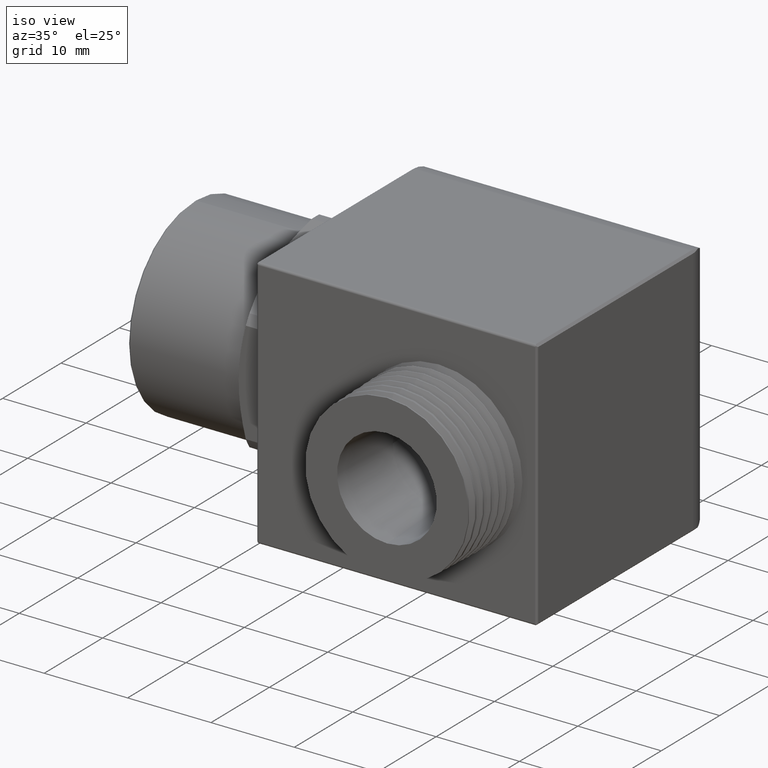
[diagram: clean part render]
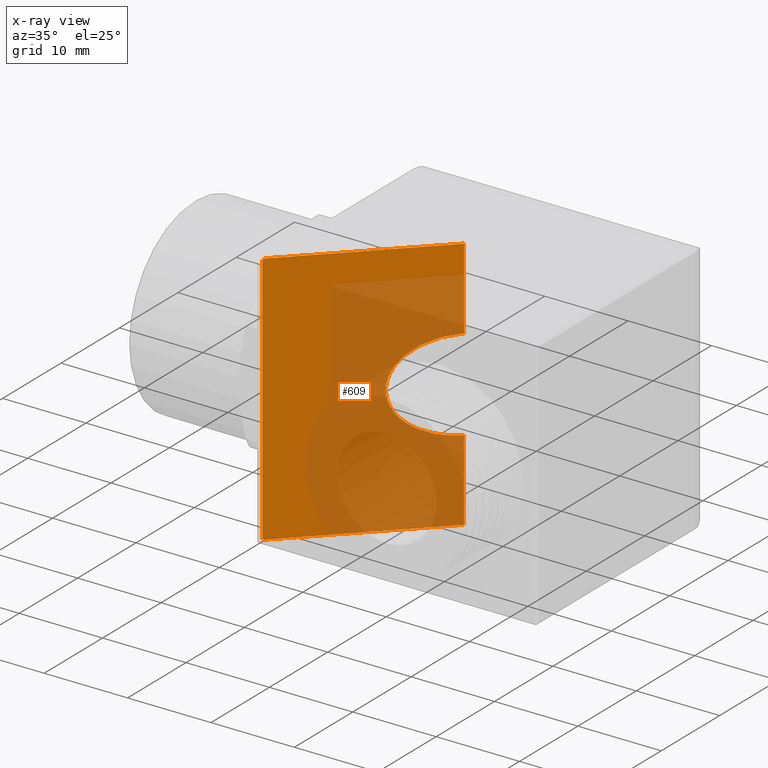
[diagram: x-ray — body ghosted, one internal face saturated and labeled with its STEP entity id]
A machine part, iso view, then the same camera in x-ray: the body is ghosted and one INTERNAL B-rep face — a face not visible from any outside direction — is saturated and labeled: STEP entity #609.
In plain terms, the highlighted planar face has unit normal (-0.7071, 0.7071, 0).
Its self-contained STEP definition (entity closure, byte-faithful):
#412 = VERTEX_POINT ( 'NONE', #1852 ) ;
#414 = EDGE_CURVE ( 'NONE', #415, #412, #1849, .T. ) ;
#415 = VERTEX_POINT ( 'NONE', #1851 ) ;
#566 = ORIENTED_EDGE ( 'NONE', *, *, #414, .T. ) ;
#567 = ORIENTED_EDGE ( 'NONE', *, *, #568, .F. ) ;
#568 = EDGE_CURVE ( 'NONE', #569, #412, #2163, .T. ) ;
#569 = VERTEX_POINT ( 'NONE', #2158 ) ;
#570 = ORIENTED_EDGE ( 'NONE', *, *, #571, .F. ) ;
#571 = EDGE_CURVE ( 'NONE', #572, #569, #1923, .T. ) ;
#572 = VERTEX_POINT ( 'NONE', #2205 ) ;
#573 = ORIENTED_EDGE ( 'NONE', *, *, #574, .F. ) ;
#574 = EDGE_CURVE ( 'NONE', #575, #572, #2202, .T. ) ;
#575 = VERTEX_POINT ( 'NONE', #2204 ) ;
#576 = ORIENTED_EDGE ( 'NONE', *, *, #577, .T. ) ;
#577 = EDGE_CURVE ( 'NONE', #575, #622, #2203, .T. ) ;
#609 = ADVANCED_FACE ( 'NONE', ( #2273 ), #2272, .T. ) ;
#610 = EDGE_LOOP ( 'NONE', ( #611, #566, #567, #570, #573, #576, #623, #626 ) ) ;
#611 = ORIENTED_EDGE ( 'NONE', *, *, #612, .F. ) ;
#612 = EDGE_CURVE ( 'NONE', #415, #613, #2267, .T. ) ;
#613 = VERTEX_POINT ( 'NONE', #2263 ) ;
#622 = VERTEX_POINT ( 'NONE', #2297 ) ;
#623 = ORIENTED_EDGE ( 'NONE', *, *, #624, .F. ) ;
#624 = EDGE_CURVE ( 'NONE', #625, #622, #2294, .T. ) ;
#625 = VERTEX_POINT ( 'NONE', #2296 ) ;
#626 = ORIENTED_EDGE ( 'NONE', *, *, #627, .T. ) ;
#627 = EDGE_CURVE ( 'NONE', #625, #613, #2295, .T. ) ;
#1845 = CARTESIAN_POINT ( 'NONE',  ( 0.2101000000000059200, 0.0000000000000000000, -0.2172500000000001100 ) ) ;
#1846 = CARTESIAN_POINT ( 'NONE',  ( -0.2243999999999939400, -0.4344999999999999400, -0.2172499999999999700 ) ) ;
#1847 = CARTESIAN_POINT ( 'NONE',  ( -0.2243999999999938500, -0.4344999999999997800, 0.2172500000000000500 ) ) ;
#1848 = CARTESIAN_POINT ( 'NONE',  ( 0.2101000000000059200, 0.0000000000000000000, 0.2172499999999999700 ) ) ;
#1849 =( BOUNDED_CURVE ( )  B_SPLINE_CURVE ( 3, ( #1848, #1847, #1846, #1845 ),
 .UNSPECIFIED., .F., .T. ) 
 B_SPLINE_CURVE_WITH_KNOTS ( ( 4, 4 ),
 ( 4.712388980384689700, 7.853981633974482800 ),
 .UNSPECIFIED. ) 
 CURVE ( )  GEOMETRIC_REPRESENTATION_ITEM ( )  RATIONAL_B_SPLINE_CURVE ( ( 1.000000000000000000, 0.3333333333333333100, 0.3333333333333333100, 1.000000000000000000 ) ) 
 REPRESENTATION_ITEM ( '' )  );
#1851 = CARTESIAN_POINT ( 'NONE',  ( 0.2101000000000059200, 0.0000000000000000000, 0.2172499999999999700 ) ) ;
#1852 = CARTESIAN_POINT ( 'NONE',  ( 0.2101000000000059200, 0.0000000000000000000, -0.2172500000000001100 ) ) ;
#1922 = CARTESIAN_POINT ( 'NONE',  ( 0.8433833333333361500, 0.6332833333333303100, -0.5999999999999999800 ) ) ;
#1923 = LINE ( 'NONE', #1922, #2207 ) ;
#2158 = CARTESIAN_POINT ( 'NONE',  ( 0.2101000000000060300, 1.365923996832131600E-016, -0.5999999999999999800 ) ) ;
#2160 = DIRECTION ( 'NONE',  ( 0.0000000000000000000, 0.0000000000000000000, 1.000000000000000000 ) ) ;
#2161 = VECTOR ( 'NONE', #2160, 39.37007874015748100 ) ;
#2162 = CARTESIAN_POINT ( 'NONE',  ( 0.2101000000000059200, 0.0000000000000000000, -0.6003937007874016200 ) ) ;
#2163 = LINE ( 'NONE', #2162, #2161 ) ;
#2195 = DIRECTION ( 'NONE',  ( 0.0000000000000000000, 0.0000000000000000000, 1.000000000000000000 ) ) ;
#2196 = VECTOR ( 'NONE', #2195, 39.37007874015748100 ) ;
#2197 = CARTESIAN_POINT ( 'NONE',  ( -0.3498999999999999300, -0.5600000000000058300, 0.5999999999999999800 ) ) ;
#2198 = CARTESIAN_POINT ( 'NONE',  ( -0.3398999999999999200, -0.5500000000000056000, -0.5999999999999999800 ) ) ;
#2199 = CARTESIAN_POINT ( 'NONE',  ( -0.3457578643762689300, -0.5558578643762748200, -0.5999999999999999800 ) ) ;
#2200 = CARTESIAN_POINT ( 'NONE',  ( -0.3498999999999999300, -0.5600000000000058300, -0.5958578643762689800 ) ) ;
#2201 = CARTESIAN_POINT ( 'NONE',  ( -0.3498999999999999300, -0.5600000000000058300, -0.5899999999999999700 ) ) ;
#2202 =( BOUNDED_CURVE ( )  B_SPLINE_CURVE ( 3, ( #2201, #2200, #2199, #2198 ),
 .UNSPECIFIED., .F., .T. ) 
 B_SPLINE_CURVE_WITH_KNOTS ( ( 4, 4 ),
 ( 3.141592653589793100, 4.712388980384696800 ),
 .UNSPECIFIED. ) 
 CURVE ( )  GEOMETRIC_REPRESENTATION_ITEM ( )  RATIONAL_B_SPLINE_CURVE ( ( 1.000000000000000000, 0.8047378541243632700, 0.8047378541243632700, 1.000000000000000000 ) ) 
 REPRESENTATION_ITEM ( '' )  );
#2203 = LINE ( 'NONE', #2197, #2196 ) ;
#2204 = CARTESIAN_POINT ( 'NONE',  ( -0.3498999999999999300, -0.5600000000000058300, -0.5899999999999999700 ) ) ;
#2205 = CARTESIAN_POINT ( 'NONE',  ( -0.3398999999999999200, -0.5500000000000056000, -0.5999999999999999800 ) ) ;
#2206 = DIRECTION ( 'NONE',  ( 0.7071067811865474600, 0.7071067811865474600, 0.0000000000000000000 ) ) ;
#2207 = VECTOR ( 'NONE', #2206, 39.37007874015748900 ) ;
#2263 = CARTESIAN_POINT ( 'NONE',  ( 0.2101000000000060300, 1.365923996832131600E-016, 0.5999999999999999800 ) ) ;
#2264 = DIRECTION ( 'NONE',  ( 0.0000000000000000000, 0.0000000000000000000, 1.000000000000000000 ) ) ;
#2265 = VECTOR ( 'NONE', #2264, 39.37007874015748100 ) ;
#2266 = CARTESIAN_POINT ( 'NONE',  ( 0.2101000000000059200, 0.0000000000000000000, -0.6003937007874016200 ) ) ;
#2267 = LINE ( 'NONE', #2266, #2265 ) ;
#2268 = DIRECTION ( 'NONE',  ( -0.7071067811865474600, -0.7071067811865474600, 0.0000000000000000000 ) ) ;
#2269 = DIRECTION ( 'NONE',  ( -0.7071067811865475700, 0.7071067811865475700, 0.0000000000000000000 ) ) ;
#2270 = CARTESIAN_POINT ( 'NONE',  ( 0.2101000000000059200, 0.0000000000000000000, -0.6003937007874016200 ) ) ;
#2271 = AXIS2_PLACEMENT_3D ( 'NONE', #2270, #2269, #2268 ) ;
#2272 = PLANE ( 'NONE',  #2271 ) ;
#2273 = FACE_OUTER_BOUND ( 'NONE', #610, .T. ) ;
#2287 = DIRECTION ( 'NONE',  ( 0.7071067811865474600, 0.7071067811865474600, 0.0000000000000000000 ) ) ;
#2288 = VECTOR ( 'NONE', #2287, 39.37007874015748900 ) ;
#2289 = CARTESIAN_POINT ( 'NONE',  ( 0.8433833333333361500, 0.6332833333333303100, 0.5999999999999999800 ) ) ;
#2290 = CARTESIAN_POINT ( 'NONE',  ( -0.3498999999999999300, -0.5600000000000058300, 0.5899999999999999700 ) ) ;
#2291 = CARTESIAN_POINT ( 'NONE',  ( -0.3498999999999999300, -0.5600000000000058300, 0.5958578643762689800 ) ) ;
#2292 = CARTESIAN_POINT ( 'NONE',  ( -0.3457578643762688200, -0.5558578643762747100, 0.5999999999999998700 ) ) ;
#2293 = CARTESIAN_POINT ( 'NONE',  ( -0.3398999999999998100, -0.5500000000000057100, 0.5999999999999999800 ) ) ;
#2294 =( BOUNDED_CURVE ( )  B_SPLINE_CURVE ( 3, ( #2293, #2292, #2291, #2290 ),
 .UNSPECIFIED., .F., .T. ) 
 B_SPLINE_CURVE_WITH_KNOTS ( ( 4, 4 ),
 ( 4.712388980384689700, 6.283185307179586200 ),
 .UNSPECIFIED. ) 
 CURVE ( )  GEOMETRIC_REPRESENTATION_ITEM ( )  RATIONAL_B_SPLINE_CURVE ( ( 1.000000000000000000, 0.8047378541243649400, 0.8047378541243649400, 1.000000000000000000 ) ) 
 REPRESENTATION_ITEM ( '' )  );
#2295 = LINE ( 'NONE', #2289, #2288 ) ;
#2296 = CARTESIAN_POINT ( 'NONE',  ( -0.3398999999999998100, -0.5500000000000057100, 0.5999999999999999800 ) ) ;
#2297 = CARTESIAN_POINT ( 'NONE',  ( -0.3498999999999999300, -0.5600000000000058300, 0.5899999999999999700 ) ) ;